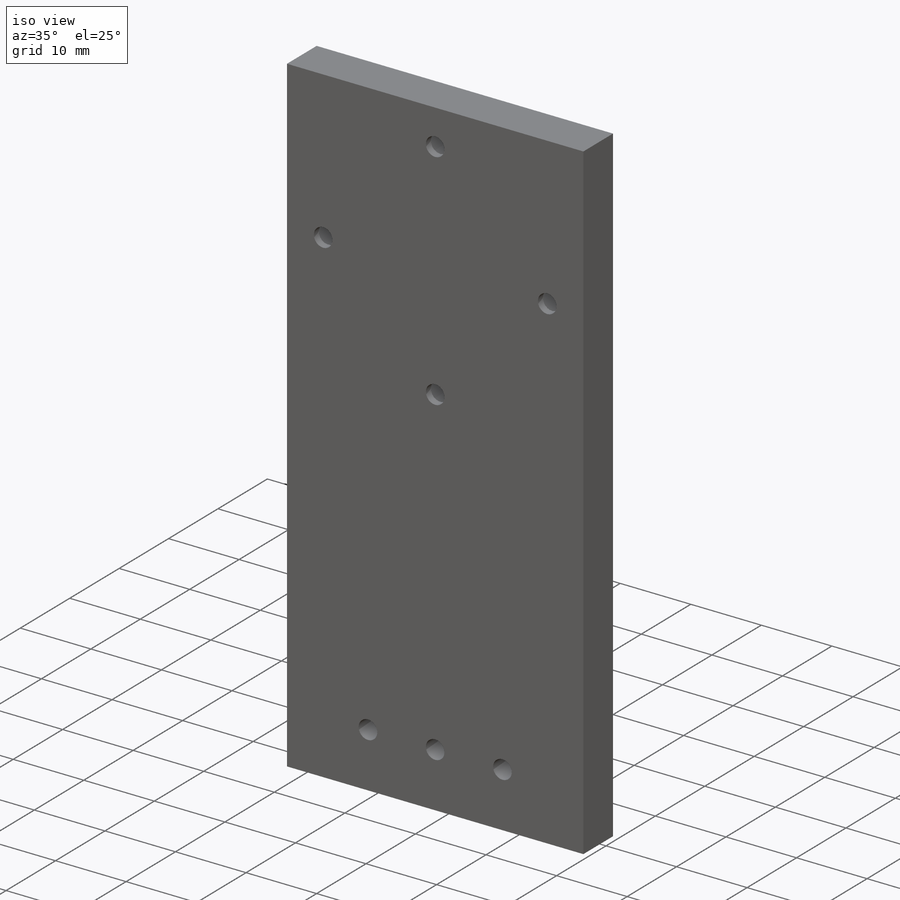
[diagram: iso view]
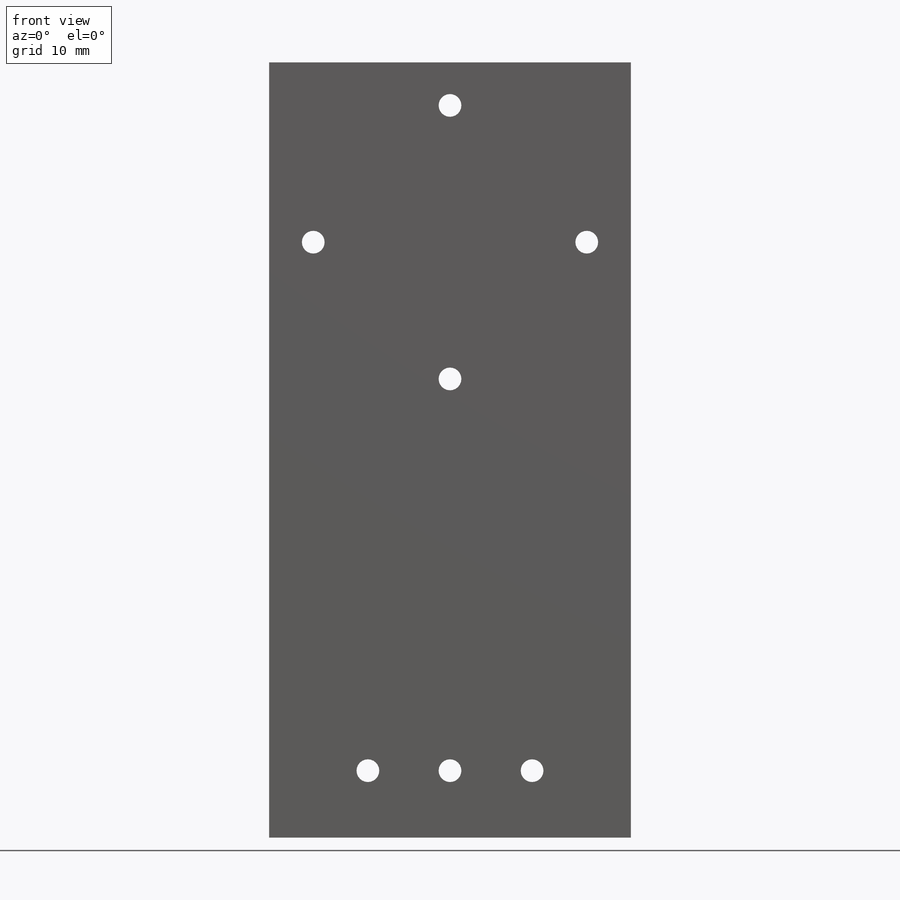
[diagram: front view]
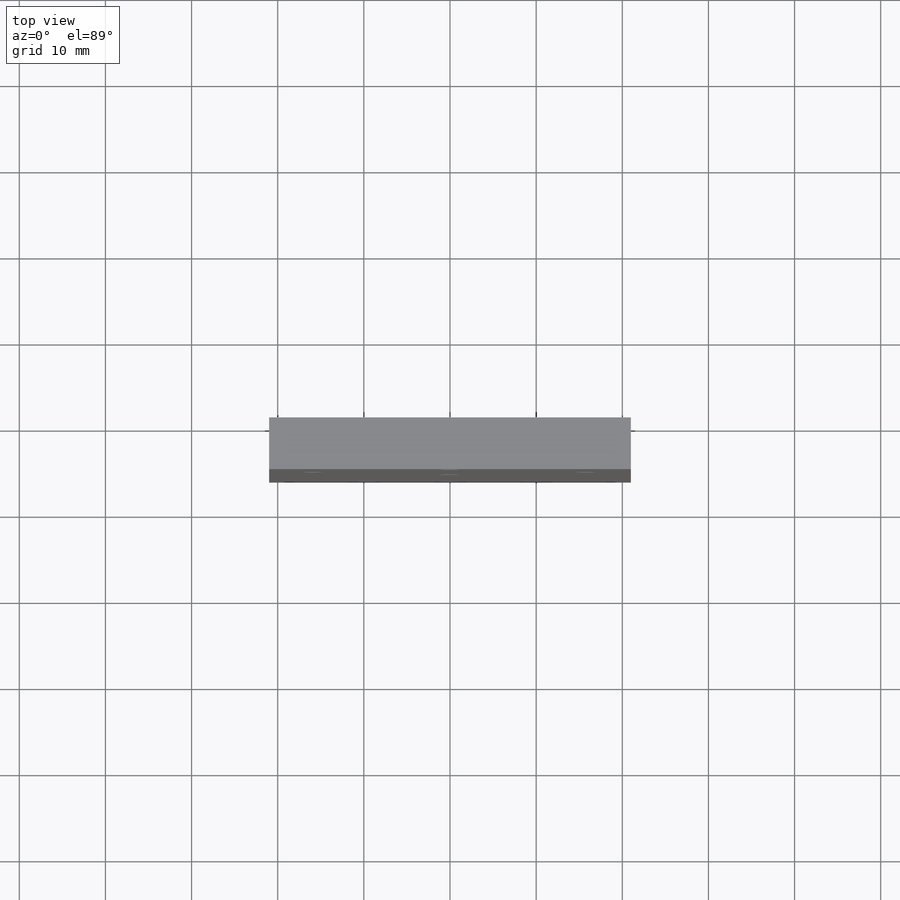
[diagram: top view]
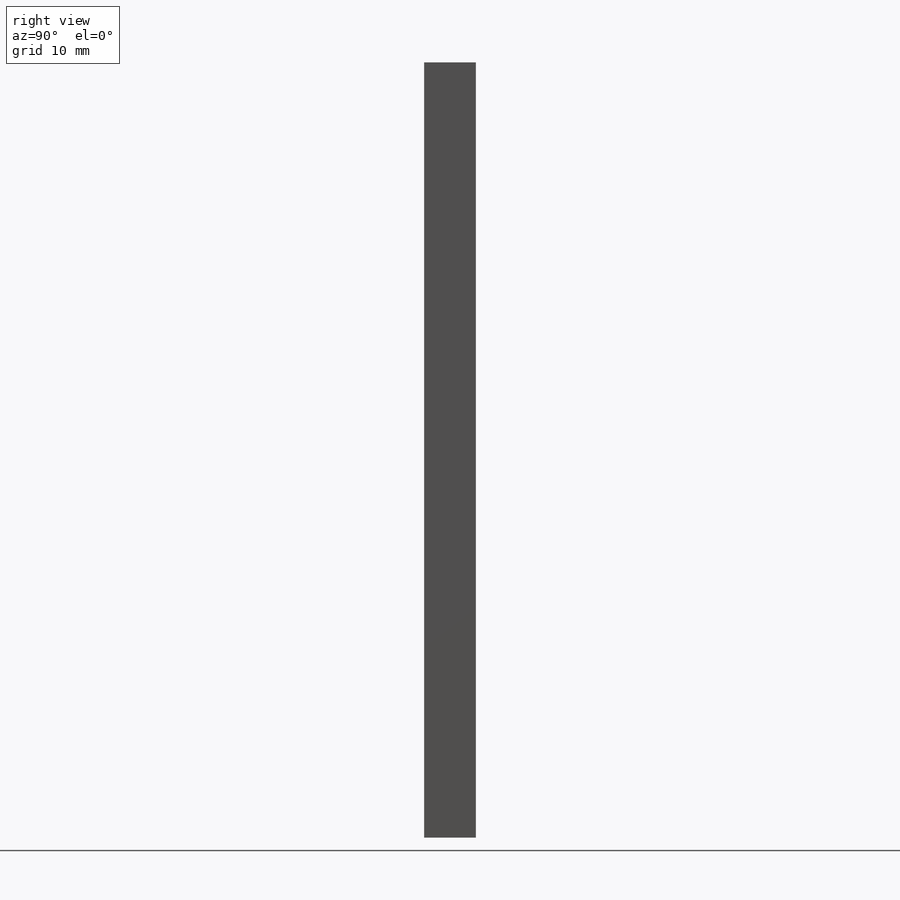
[diagram: right view]
SOLIDWORKS PART (.sldprt)
format: sldprt  version: not decoded by parser v0  size: 215,040 bytes
history: native  units: mm
features: sketch x4, material x1, extrude x1, cut_extrude x1 (+12 scaffold rows collapsed)
feature tree (19):
  scaffold x12  (default folders/planes/origin — collapsed)
  material  "Material <not specified>"
  sketch  "Sketch1"  dims[c1.D3=2.64mm c1.D8=~4.237904mm c1.D9=~4.237904mm c1.D10=2.64mm c1.D13=2.64mm c1.D14=2.64mm c1.D15=2.64mm c1.D16=2.64mm c2.D8=2.64mm c2.D10=2.64mm c2.D11=2.64mm c3.D10=2.64mm c3.D2=40.0mm c3.D3=4.0mm c3.D6=2.64mm c3.D7=4.0mm c3.D11=4.0mm c4.D3=2.64mm c4.D5=2.64mm c4.D6=2.64mm c4.D7=2.64mm c4.D1=2.64mm c4.D9=2.64mm c4.D11=2.64mm c4.D12=2.64mm c4.D14=40.0mm c5.D11=2.64mm c5.D12=2.64mm c5.D13=2.64mm c5.D1=~92.338947mm c5.D2=~143.470853mm c6.D1=55.0mm c6.D2=75.0mm c6.D3=~13.612096mm c6.D6=31.75mm c6.D7=31.75mm c6.D8=5.0mm c6.D9=5.0mm c6.D13=45.0mm c6.D14=65.0mm c6.D15=65.0mm c6.D16=45.0mm c7.D15=~39.942185mm c7.D10=19.06mm c7.D11=9.53mm c8.D10=9.53mm c8.D3=~67.970121mm c8.D5=15.875mm c8.D6=15.875mm c8.D7=15.875mm c8.D11=15.875mm c8.D12=15.875mm c8.D13=~67.970121mm c9.D13=90.0deg c9.D14=~90.154109mm c10.D14=90.0deg c10.D4=15.875mm c10.D6=15.875mm c10.D7=15.875mm c10.D8=61.35mm c10.D9=9.53mm c10.D10=~83.218173mm c10.D11=~47.320138mm c11.D10=5.0mm c11.D11=9.0mm c11.D12=5.0mm c11.D13=5.0mm c12.D11=8.0mm c12.D10=42.0mm c13.D11=90.0mm c13.D12=5.0mm c13.D13=5.125mm c13.D7=3.0 c13.D5=4.0]
  extrude  "Boss-Extrude1"  Depth=6mm
  sketch  "Sketch2"  dims[D1=6.5mm D3=6.5mm D4=6.5mm D2=4.0]
  cut_extrude  "Cut-Extrude1"  Depth=5mm
  sketch  "Sketch3"  dims[D1=31.75mm]
  sketch  "Sketch4"  dims[D1=~5.428947mm]
decode coverage: 6 of 6 modeling features carry decoded parameters
note: ~ marks probable driven/reference dimensions
note: suppression state not decoded; provenance and decode notes live in map.json
